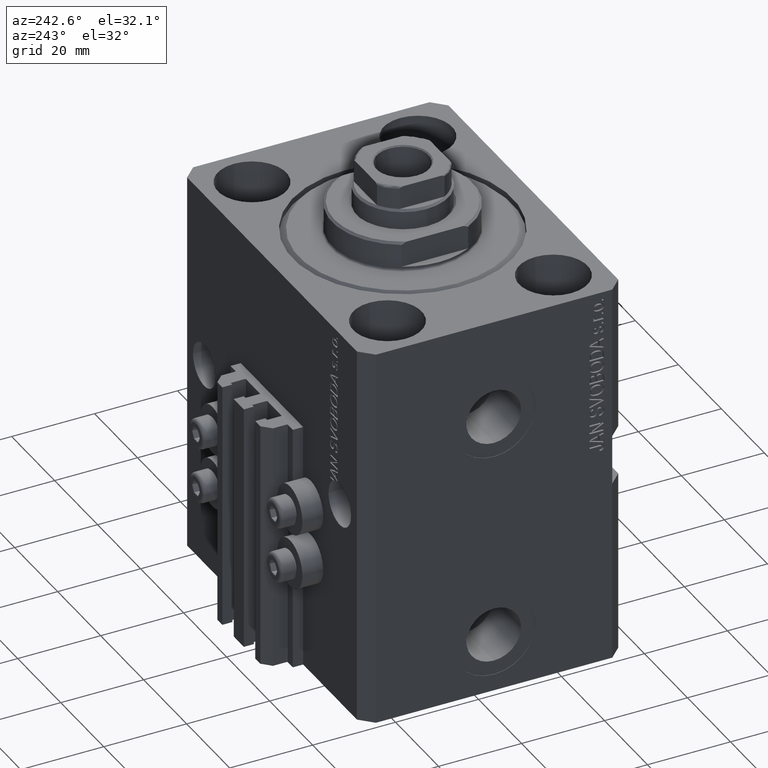
[diagram: clean part render]
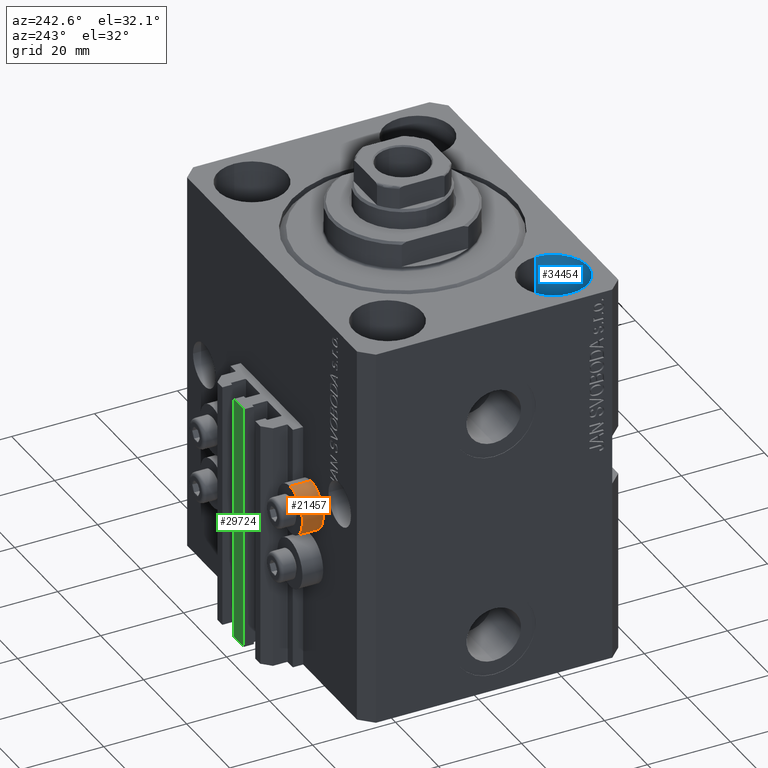
[diagram: same view with three faces highlighted in distinct colors, each labeled with its STEP entity id]
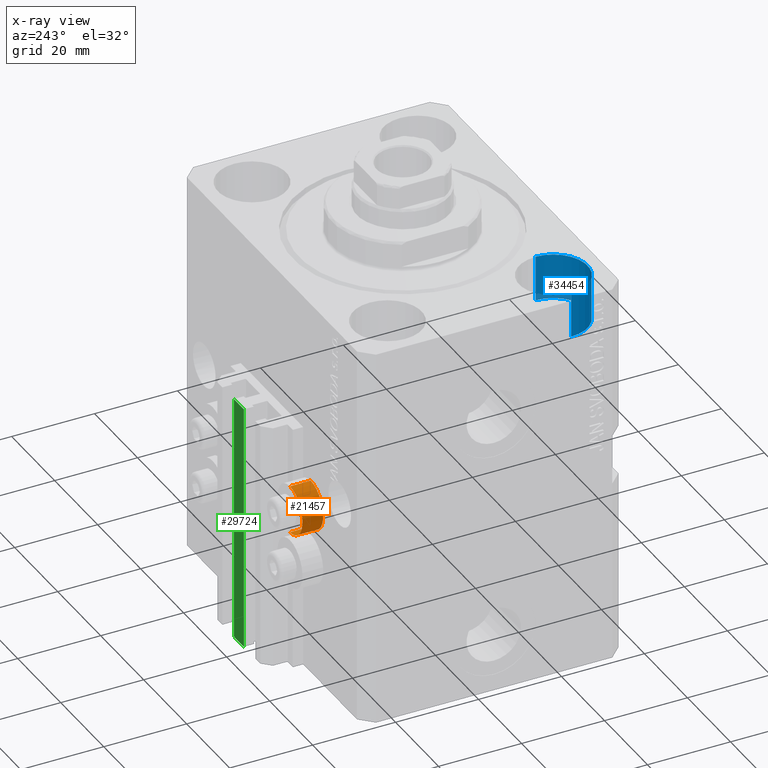
[diagram: x-ray of the same camera — body ghosted, the three highlighted faces saturated]
A machine part, auxiliary view with three faces highlighted in distinct colors.
The next image is the same camera in x-ray (body ghosted, the three faces saturated) — at least one of them is partly hidden behind the body in this view.
Their STEP definitions:

[orange] entity #21457 — the highlighted cylindrical surface (edge-blend (fillet) strip) has radius 5.8 mm, axis along (0, 1, 0).
#1525 = AXIS2_PLACEMENT_3D ( 'NONE', #22527, #34296, #22766 ) ;
#4421 = CARTESIAN_POINT ( 'NONE',  ( -18.00000000000000355, 36.49999999996099120, -44.60000000000000142 ) ) ;
#4756 = CARTESIAN_POINT ( 'NONE',  ( -18.00000000000000355, 31.50000000000000000, -44.60000000000000142 ) ) ;
#5408 = LINE ( 'NONE', #20095, #43021 ) ;
#6954 = EDGE_CURVE ( 'NONE', #34812, #17432, #42226, .T. ) ;
#7059 = EDGE_CURVE ( 'NONE', #7499, #34812, #5408, .T. ) ;
#7499 = VERTEX_POINT ( 'NONE', #38910 ) ;
#10762 = CARTESIAN_POINT ( 'NONE',  ( -18.00000000000000355, 31.50000000000000000, -50.39999999999999858 ) ) ;
#12728 = CYLINDRICAL_SURFACE ( 'NONE', #44643, 5.799999999999999822 ) ;
#15004 = EDGE_CURVE ( 'NONE', #7499, #35635, #20623, .T. ) ;
#16345 = FACE_OUTER_BOUND ( 'NONE', #27694, .T. ) ;
#17432 = VERTEX_POINT ( 'NONE', #4421 ) ;
#19251 = EDGE_CURVE ( 'NONE', #35635, #17432, #34305, .T. ) ;
#19376 = CARTESIAN_POINT ( 'NONE',  ( -18.00000000000000355, 36.49999999996099120, -56.20000000000000284 ) ) ;
#20095 = CARTESIAN_POINT ( 'NONE',  ( -18.00000000000000355, 36.49999999996099120, -56.20000000000000284 ) ) ;
#20623 = CIRCLE ( 'NONE', #33675, 5.799999999999999822 ) ;
#21457 = ADVANCED_FACE ( 'NONE', ( #16345 ), #12728, .T. ) ;
#22527 = CARTESIAN_POINT ( 'NONE',  ( -18.00000000000000355, 36.49999999996099120, -50.39999999999999858 ) ) ;
#22766 = DIRECTION ( 'NONE',  ( 0.000000000000000000, 0.000000000000000000, 1.000000000000000000 ) ) ;
#25453 = DIRECTION ( 'NONE',  ( -0.000000000000000000, 1.000000000000000000, -0.000000000000000000 ) ) ;
#27694 = EDGE_LOOP ( 'NONE', ( #38268, #42469, #38142, #43861 ) ) ;
#33141 = DIRECTION ( 'NONE',  ( 0.000000000000000000, 0.000000000000000000, 1.000000000000000000 ) ) ;
#33675 = AXIS2_PLACEMENT_3D ( 'NONE', #10762, #25453, #33141 ) ;
#33827 = DIRECTION ( 'NONE',  ( -0.000000000000000000, 1.000000000000000000, -0.000000000000000000 ) ) ;
#34296 = DIRECTION ( 'NONE',  ( -0.000000000000000000, 1.000000000000000000, -0.000000000000000000 ) ) ;
#34305 = LINE ( 'NONE', #37436, #45359 ) ;
#34757 = DIRECTION ( 'NONE',  ( -0.000000000000000000, 1.000000000000000000, -0.000000000000000000 ) ) ;
#34812 = VERTEX_POINT ( 'NONE', #19376 ) ;
#35635 = VERTEX_POINT ( 'NONE', #4756 ) ;
#37436 = CARTESIAN_POINT ( 'NONE',  ( -18.00000000000000355, 36.49999999996099120, -44.60000000000000142 ) ) ;
#38142 = ORIENTED_EDGE ( 'NONE', *, *, #19251, .T. ) ;
#38268 = ORIENTED_EDGE ( 'NONE', *, *, #7059, .F. ) ;
#38473 = DIRECTION ( 'NONE',  ( 0.000000000000000000, 0.000000000000000000, 1.000000000000000000 ) ) ;
#38910 = CARTESIAN_POINT ( 'NONE',  ( -18.00000000000000355, 31.50000000000000000, -56.20000000000000284 ) ) ;
#42226 = CIRCLE ( 'NONE', #1525, 5.799999999999999822 ) ;
#42469 = ORIENTED_EDGE ( 'NONE', *, *, #15004, .T. ) ;
#43021 = VECTOR ( 'NONE', #34757, 1000.000000000000000 ) ;
#43861 = ORIENTED_EDGE ( 'NONE', *, *, #6954, .F. ) ;
#44643 = AXIS2_PLACEMENT_3D ( 'NONE', #45699, #46169, #38473 ) ;
#45359 = VECTOR ( 'NONE', #33827, 1000.000000000000000 ) ;
#45699 = CARTESIAN_POINT ( 'NONE',  ( -18.00000000000000355, 36.49999999996099120, -50.39999999999999858 ) ) ;
#46169 = DIRECTION ( 'NONE',  ( -0.000000000000000000, 1.000000000000000000, -0.000000000000000000 ) ) ;

[blue] entity #34454 — the highlighted cylindrical surface (partial cylindrical patch) has radius 8.25 mm, axis along (0, 0, 1).
#1713 = CARTESIAN_POINT ( 'NONE',  ( -23.25000000000000000, -20.00000000000000000, -11.00000000000000000 ) ) ;
#1928 = VERTEX_POINT ( 'NONE', #41924 ) ;
#2437 = VERTEX_POINT ( 'NONE', #3041 ) ;
#3041 = CARTESIAN_POINT ( 'NONE',  ( -23.25000000000000000, -20.00000000000000000, 0.000000000000000000 ) ) ;
#5730 = VECTOR ( 'NONE', #27845, 1000.000000000000000 ) ;
#5735 = DIRECTION ( 'NONE',  ( 1.000000000000000000, 0.000000000000000000, 0.000000000000000000 ) ) ;
#7705 = VERTEX_POINT ( 'NONE', #41815 ) ;
#8874 = DIRECTION ( 'NONE',  ( 1.000000000000000000, 0.000000000000000000, 0.000000000000000000 ) ) ;
#8887 = DIRECTION ( 'NONE',  ( 0.000000000000000000, 0.000000000000000000, 1.000000000000000000 ) ) ;
#9109 = ORIENTED_EDGE ( 'NONE', *, *, #27396, .F. ) ;
#11586 = DIRECTION ( 'NONE',  ( 0.000000000000000000, 0.000000000000000000, 1.000000000000000000 ) ) ;
#12308 = DIRECTION ( 'NONE',  ( -0.000000000000000000, -0.000000000000000000, 1.000000000000000000 ) ) ;
#14915 = CIRCLE ( 'NONE', #39504, 8.250000000000000000 ) ;
#17742 = AXIS2_PLACEMENT_3D ( 'NONE', #41853, #8887, #5735 ) ;
#19915 = LINE ( 'NONE', #23536, #5730 ) ;
#21419 = EDGE_CURVE ( 'NONE', #1928, #2437, #21579, .T. ) ;
#21579 = CIRCLE ( 'NONE', #17742, 8.250000000000000000 ) ;
#23536 = CARTESIAN_POINT ( 'NONE',  ( -39.75000000000000000, -20.00000000000000000, -11.00000000000000000 ) ) ;
#23566 = CARTESIAN_POINT ( 'NONE',  ( -23.25000000000000000, -20.00000000000000000, -11.00000000000000000 ) ) ;
#26520 = AXIS2_PLACEMENT_3D ( 'NONE', #41838, #27874, #8874 ) ;
#27165 = FACE_OUTER_BOUND ( 'NONE', #32924, .T. ) ;
#27396 = EDGE_CURVE ( 'NONE', #41097, #2437, #30599, .T. ) ;
#27401 = CYLINDRICAL_SURFACE ( 'NONE', #26520, 8.250000000000000000 ) ;
#27845 = DIRECTION ( 'NONE',  ( -0.000000000000000000, -0.000000000000000000, 1.000000000000000000 ) ) ;
#27874 = DIRECTION ( 'NONE',  ( -0.000000000000000000, -0.000000000000000000, 1.000000000000000000 ) ) ;
#29882 = CARTESIAN_POINT ( 'NONE',  ( -31.50000000000000000, -20.00000000000000000, -11.00000000000000000 ) ) ;
#30115 = DIRECTION ( 'NONE',  ( 1.000000000000000000, 0.000000000000000000, 0.000000000000000000 ) ) ;
#30599 = LINE ( 'NONE', #1713, #46384 ) ;
#32924 = EDGE_LOOP ( 'NONE', ( #46641, #46287, #37665, #9109 ) ) ;
#34454 = ADVANCED_FACE ( 'NONE', ( #27165 ), #27401, .F. ) ;
#37665 = ORIENTED_EDGE ( 'NONE', *, *, #21419, .T. ) ;
#39504 = AXIS2_PLACEMENT_3D ( 'NONE', #29882, #11586, #30115 ) ;
#41097 = VERTEX_POINT ( 'NONE', #23566 ) ;
#41815 = CARTESIAN_POINT ( 'NONE',  ( -39.75000000000000000, -20.00000000000000000, -11.00000000000000000 ) ) ;
#41838 = CARTESIAN_POINT ( 'NONE',  ( -31.50000000000000000, -20.00000000000000000, -11.00000000000000000 ) ) ;
#41844 = EDGE_CURVE ( 'NONE', #7705, #41097, #14915, .T. ) ;
#41853 = CARTESIAN_POINT ( 'NONE',  ( -31.50000000000000000, -20.00000000000000000, 0.000000000000000000 ) ) ;
#41924 = CARTESIAN_POINT ( 'NONE',  ( -39.75000000000000000, -20.00000000000000000, 0.000000000000000000 ) ) ;
#45716 = EDGE_CURVE ( 'NONE', #7705, #1928, #19915, .T. ) ;
#46287 = ORIENTED_EDGE ( 'NONE', *, *, #45716, .T. ) ;
#46384 = VECTOR ( 'NONE', #12308, 1000.000000000000000 ) ;
#46641 = ORIENTED_EDGE ( 'NONE', *, *, #41844, .F. ) ;

[green] entity #29724 — the highlighted planar face has unit normal (0, -1, 0).
#579 = CARTESIAN_POINT ( 'NONE',  ( -2.350000000000003642, 39.50000000000000711, -93.00000000000000000 ) ) ;
#610 = ORIENTED_EDGE ( 'NONE', *, *, #10016, .F. ) ;
#883 = CARTESIAN_POINT ( 'NONE',  ( 2.349999999999999645, 39.50000000000000711, -93.00000000000000000 ) ) ;
#1245 = CARTESIAN_POINT ( 'NONE',  ( 2.349999999999999645, 39.50000000000000711, -33.00000000000000000 ) ) ;
#2598 = VECTOR ( 'NONE', #42020, 1000.000000000000000 ) ;
#3497 = EDGE_CURVE ( 'NONE', #34404, #27333, #45896, .T. ) ;
#4191 = DIRECTION ( 'NONE',  ( 0.000000000000000000, 0.000000000000000000, 1.000000000000000000 ) ) ;
#4473 = VECTOR ( 'NONE', #28091, 1000.000000000000000 ) ;
#5309 = CARTESIAN_POINT ( 'NONE',  ( -2.350000000000003642, 39.50000000000000711, -93.00000000000000000 ) ) ;
#8605 = VERTEX_POINT ( 'NONE', #23011 ) ;
#8687 = DIRECTION ( 'NONE',  ( 1.000000000000000000, 0.000000000000000000, 0.000000000000000000 ) ) ;
#8731 = VECTOR ( 'NONE', #4191, 1000.000000000000000 ) ;
#8918 = DIRECTION ( 'NONE',  ( 0.000000000000000000, -0.000000000000000000, -1.000000000000000000 ) ) ;
#9049 = LINE ( 'NONE', #883, #2598 ) ;
#9105 = CARTESIAN_POINT ( 'NONE',  ( -2.350000000000003642, 39.50000000000000711, -33.00000000000000000 ) ) ;
#9454 = VECTOR ( 'NONE', #8687, 1000.000000000000000 ) ;
#10016 = EDGE_CURVE ( 'NONE', #8605, #38484, #33723, .T. ) ;
#11190 = ORIENTED_EDGE ( 'NONE', *, *, #40423, .F. ) ;
#13410 = CARTESIAN_POINT ( 'NONE',  ( -2.350000000000003642, 39.50000000000000711, -33.00000000000000000 ) ) ;
#16616 = DIRECTION ( 'NONE',  ( 0.000000000000000000, -1.000000000000000000, 0.000000000000000000 ) ) ;
#19110 = LINE ( 'NONE', #579, #8731 ) ;
#19510 = ORIENTED_EDGE ( 'NONE', *, *, #3497, .T. ) ;
#22711 = FACE_OUTER_BOUND ( 'NONE', #27070, .T. ) ;
#23011 = CARTESIAN_POINT ( 'NONE',  ( -2.350000000000003642, 39.50000000000000711, -93.00000000000000000 ) ) ;
#27070 = EDGE_LOOP ( 'NONE', ( #19510, #11190, #610, #28996 ) ) ;
#27210 = PLANE ( 'NONE',  #34831 ) ;
#27333 = VERTEX_POINT ( 'NONE', #1245 ) ;
#28091 = DIRECTION ( 'NONE',  ( 1.000000000000000000, 0.000000000000000000, 0.000000000000000000 ) ) ;
#28996 = ORIENTED_EDGE ( 'NONE', *, *, #30585, .T. ) ;
#29724 = ADVANCED_FACE ( 'NONE', ( #22711 ), #27210, .F. ) ;
#30585 = EDGE_CURVE ( 'NONE', #8605, #34404, #19110, .T. ) ;
#30820 = CARTESIAN_POINT ( 'NONE',  ( -2.350000000000003642, 39.50000000000000711, -93.00000000000000000 ) ) ;
#33723 = LINE ( 'NONE', #5309, #9454 ) ;
#33825 = CARTESIAN_POINT ( 'NONE',  ( 2.349999999999999645, 39.50000000000000711, -93.00000000000000000 ) ) ;
#34404 = VERTEX_POINT ( 'NONE', #9105 ) ;
#34831 = AXIS2_PLACEMENT_3D ( 'NONE', #30820, #16616, #8918 ) ;
#38484 = VERTEX_POINT ( 'NONE', #33825 ) ;
#40423 = EDGE_CURVE ( 'NONE', #38484, #27333, #9049, .T. ) ;
#42020 = DIRECTION ( 'NONE',  ( 0.000000000000000000, 0.000000000000000000, 1.000000000000000000 ) ) ;
#45896 = LINE ( 'NONE', #13410, #4473 ) ;